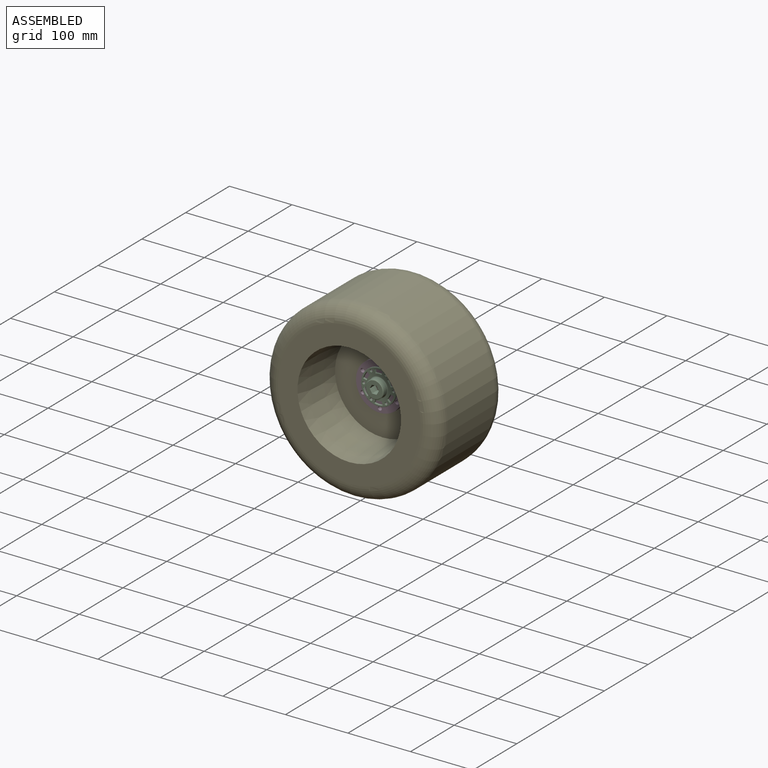
[diagram: assembled view]
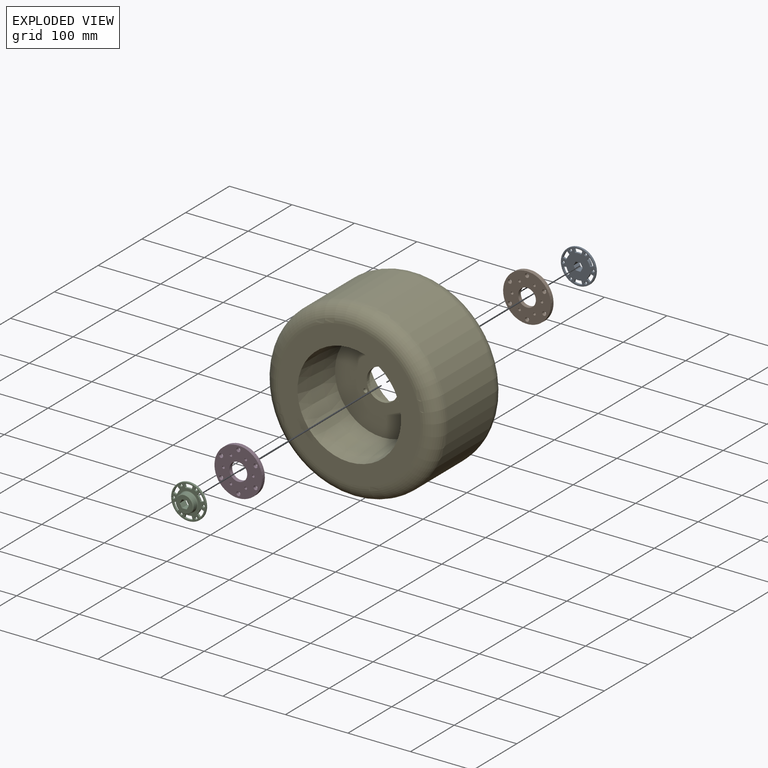
[diagram: exploded view]
GUIDED TOUR — MATED ASSEMBLY (Onshape document 413bc29f9eb9ac59f53fe216, AutoMate assembly 413bc29f9eb9ac59f53fe216_89440d528bdd338ad5810dab_16294e962d34230789b8fc0b_default)

This assembly has 5 components, labeled P0..P4 below (a component is one placed occurrence of a part; the same part can appear more than once), held together by 12 mates. A mate is a constraint between two components; its type names the relative motion it leaves free:
  CYLINDRICAL — leaves both rotation about and translation along the listed axis free,
  PLANAR — leaves sliding in the plane through the listed point (normal = the listed direction) and rotation about that normal free.
Axis/direction vectors are unit vectors and 'through' points are millimeter coordinates, both in the assembly's world frame.

MATES
  1. CYLINDRICAL "Cylindrical 8": P1 <-> P4, axis (0.000, 1.000, 0.000) through (-130.19, -36.20, -0.29) mm
  2. CYLINDRICAL "Cylindrical 1": P2 <-> P3, axis (0.000, -1.000, 0.000) through (-114.60, -55.25, 36.20) mm
  3. CYLINDRICAL "Cylindrical 3": P0 <-> P1, axis (0.000, -1.000, 0.000) through (-78.88, -31.44, 15.58) mm
  4. PLANAR "Planar 4": P1 <-> P4, direction (0.000, -1.000, 0.000) through (-90.79, -39.38, 36.20) mm
  5. CYLINDRICAL "Cylindrical 7": P1 <-> P4, axis (0.000, 1.000, 0.000) through (-75.20, -36.20, -0.29) mm
  6. CYLINDRICAL "Cylindrical 6": P3 <-> P4, axis (0.000, -1.000, 0.000) through (-75.20, -48.90, -0.29) mm
  7. PLANAR "Planar 2": P0 <-> P1, direction (0.000, -1.000, 0.000) through (-84.11, -33.03, 21.49) mm
  8. CYLINDRICAL "Cylindrical 2": P2 <-> P3, axis (0.000, 1.000, 0.000) through (-90.79, -55.25, 36.20) mm
  9. CYLINDRICAL "Cylindrical 4": P0 <-> P1, axis (0.000, 1.000, 0.000) through (-90.79, -29.85, -5.04) mm
  10. PLANAR "Planar 1": P2 <-> P3, direction (0.000, 1.000, 0.000) through (-102.70, -52.08, 15.58) mm
  11. PLANAR "Planar 3": P3 <-> P4, direction (0.000, 1.000, 0.000) through (-102.70, -45.73, 15.58) mm
  12. CYLINDRICAL "Cylindrical 5": P3 <-> P4, axis (0.000, -1.000, 0.000) through (-102.70, -48.90, 47.33) mm

ASSEMBLY ORDER
  1. P4 — the base component [order verified]
  2. P3 [order verified]
  3. P1 [order verified]
  4. P2 [order verified]
  5. P0 [order verified]
Order-tag legend:
  [order verified] — this step's position reverses a verified removal order: the component was checked to insert without passing through the ones already placed.

Of the 5 components, 1 carries the full construction recipe — the FeatureScript program that regenerates the part's solid from scratch; the rest are supplied as boundary geometry only.
Each toured component is shown spotlighted twice — in the assembled view, then in the exploded view, where a leader line traces a displaced component back to its assembled socket (saturated green if recipe-attached, orange if geometry-only; every other component desaturated gray) — followed by its recipe or geometry summary and the mates that hold it.
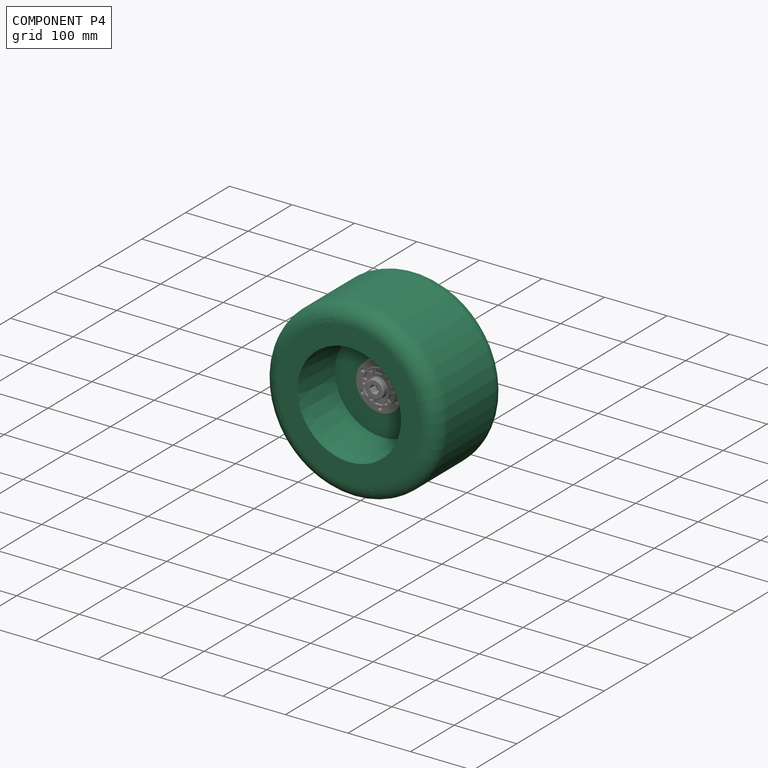
[diagram: component P4 — assembled]
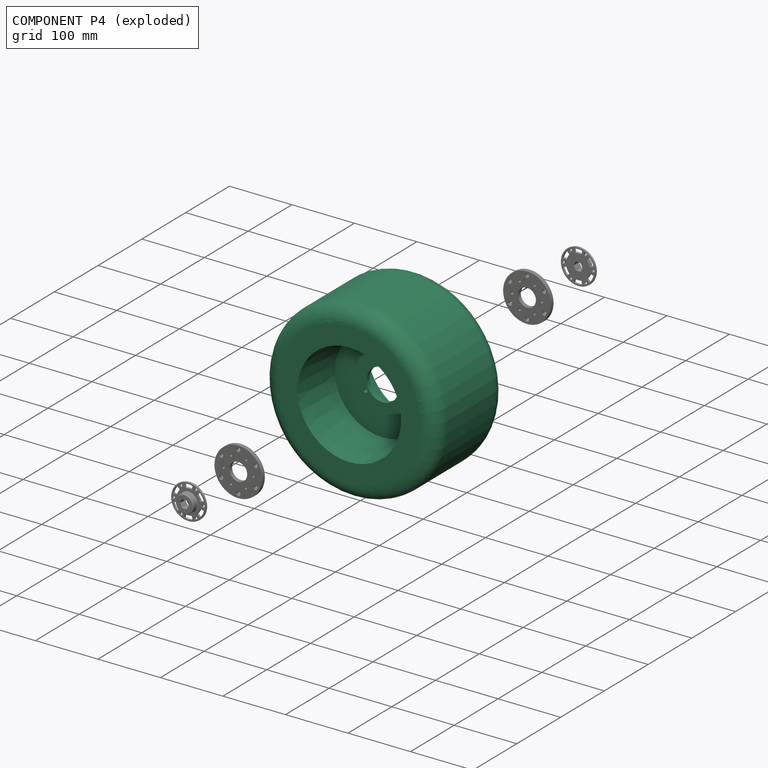
[diagram: component P4 — exploded]
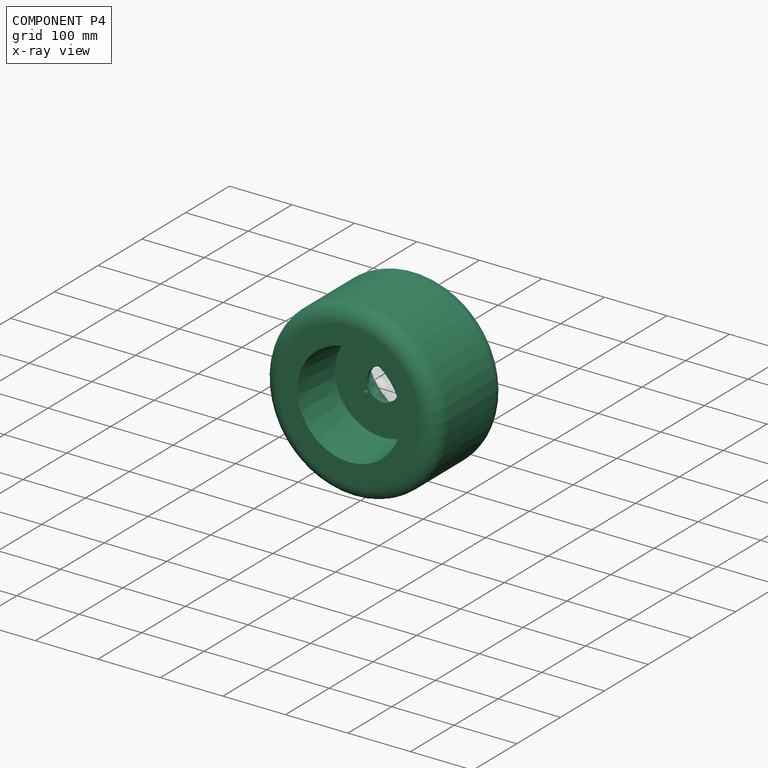
[diagram: component P4 — x-ray view]
COMPONENT P4 — recipe-attached (CADFS 00812460, mesh-verified: the recipe's output STEP matches this component's geometry to below the mesh-comparison resolution (tessellation chordal tolerance ~0.638 mm)).
Held by: CYLINDRICAL mate "Cylindrical 8" to P1; PLANAR mate "Planar 4" to P1; CYLINDRICAL mate "Cylindrical 7" to P1; CYLINDRICAL mate "Cylindrical 6" to P3; PLANAR mate "Planar 3" to P3; CYLINDRICAL mate "Cylindrical 5" to P3.
Construction recipe (FeatureScript — the CAD program that rebuilds this solid; sketch coordinates are in the units given by the * unit suffixes, e.g. mm):

FeatureScript 1511;
import(path : "onshape/std/geometry.fs", version : "1511.0");
import(path : "onshape/std/common.fs", version : "1511.0");
const mm = millimeter;
const VERTEX = EntityType.VERTEX;
const EDGE = EntityType.EDGE;
const FACE = EntityType.FACE;
const BODY = EntityType.BODY;
function v(x, y){return vector(x, y);}
function OD(order){return orderDisambiguation(order);}
function OSD(set){return originalSetDisambiguation(set);}
function TD(topology){return topologyDisambiguation(topology);}
function TDD(query){return trueDependencyDisambiguation(query);}
function sQuery(a, b, c) {return sketchEntityQuery(a, b, c);}

annotation { "Feature Type Name" : "Feature", "Feature Type Description" : "" }
export const myFeature = defineFeature(function(context is Context, id is Id, definition is map)
    precondition{}
    {
        {
            var Q0;
            Q0=qCreatedBy(makeId("Top.planeOp"),FACE);
            var sketch = newSketch(context, id + "F0", { "sketchPlane" : qUnion([Q0])});
            skLineSegment(sketch, "E0", {"start": v(0, 0) * mm, "end": v(0, 3.18) * mm});
            skLineSegment(sketch, "E1", {"start": v(0, 3.18) * mm, "end": v(76.2, 3.18) * mm});
            skLineSegment(sketch, "E2", {"start": v(76.2, 3.17) * mm, "end": v(82.87, 79.38) * mm});
            skLineSegment(sketch, "E3", {"start": v(82.87, 79.38) * mm, "end": v(139.7, 79.38) * mm});
            skLineSegment(sketch, "E4", {"start": v(139.7, 79.38) * mm, "end": v(139.7, 0) * mm});
            skLineSegment(sketch, "E5.MirrorCS", {"start": v(0, 0) * mm, "end": v(0, -3.18) * mm});
            skLineSegment(sketch, "E6.MirrorCS", {"start": v(82.87, -79.38) * mm, "end": v(139.7, -79.38) * mm});
            skLineSegment(sketch, "E7.MirrorCS", {"start": v(0, -3.18) * mm, "end": v(76.2, -3.18) * mm});
            skLineSegment(sketch, "E8.MirrorCS", {"start": v(76.2, -3.17) * mm, "end": v(82.87, -79.38) * mm});
            skLineSegment(sketch, "E9.MirrorCS", {"start": v(139.7, -79.38) * mm, "end": v(139.7, 0) * mm});
            skSolve(sketch);
        }
        {
            var Q0;
            Q0=makeQuery(id+"F0.imprint","IMPRINT",FACE,{"disambiguationData":[TD([[makeQuery(id+"F0.imprint","IMPRINT",EDGE,{"derivedFrom":sQuery(id+"F0.wireOp",EDGE,"E0")}),-1.0]])]});
            var Q1;
            Q1=sQuery(id+"F0.wireOp",EDGE,"E0");
            revolve(context, id + "F1", {"surfaceOperationType" : NewSurfaceOperationType.NEW, "entities" : qUnion([Q0]), "axis" : qUnion([Q1]), "revolveType" : RevolveType.FULL});
        }
        {
            var Q0;
            Q0=makeQuery(id+"F1.opRevolve","SWEPT_EDGE",EDGE,{"disambiguationData":[OSD([sQuery(id+"F0.wireOp",EDGE,"E6.MirrorCS"),sQuery(id+"F0.wireOp",EDGE,"E9.MirrorCS")])]});
            var Q1;
            Q1=makeQuery(id+"F1.opRevolve","SWEPT_EDGE",EDGE,{"disambiguationData":[OSD([sQuery(id+"F0.wireOp",EDGE,"E3"),sQuery(id+"F0.wireOp",EDGE,"E4")])]});
            fillet(context, id + "F2", {"entities" : qUnion([Q0, Q1]), "radius" : 25.4 * mm, "tangentPropagation" : true, "allowEdgeOverflow" : false});
        }
        {
            var Q0;
            Q0=makeQuery(id+"F1.opRevolve","SWEPT_FACE",FACE,{"disambiguationData":[OSD([sQuery(id+"F0.wireOp",EDGE,"E7.MirrorCS")])]});
            var sketch = newSketch(context, id + "F3", { "sketchPlane" : qUnion([Q0])});
            skCircle(sketch, "E10", {"center": v(0, 0) * mm, "radius": 25.4 * mm});
            skCircle(sketch, "E11", {"center": v(0, 31.75) * mm, "radius": 3.18 * mm});
            skCircle(sketch, "E12.1.0", {"center": v(-27.5, -15.87) * mm, "radius": 3.18 * mm});
            skCircle(sketch, "E12.2.0", {"center": v(27.5, -15.88) * mm, "radius": 3.18 * mm});
            skSolve(sketch);
        }
        {
            var Q0;
            Q0=makeQuery(id+"F3.imprint","IMPRINT",FACE,{"disambiguationData":[TD([[makeQuery(id+"F3.imprint","IMPRINT",EDGE,{"derivedFrom":sQuery(id+"F3.wireOp",EDGE,"E10")}),1.0]])]});
            var Q1;
            Q1=makeQuery(id+"F3.imprint","IMPRINT",FACE,{"disambiguationData":[TD([[makeQuery(id+"F3.imprint","IMPRINT",EDGE,{"derivedFrom":sQuery(id+"F3.wireOp",EDGE,"E11")}),1.0]])]});
            var Q2;
            Q2=makeQuery(id+"F3.imprint","IMPRINT",FACE,{"disambiguationData":[TD([[makeQuery(id+"F3.imprint","IMPRINT",EDGE,{"derivedFrom":sQuery(id+"F3.wireOp",EDGE,"E12.1.0")}),1.0]])]});
            var Q3;
            Q3=makeQuery(id+"F3.imprint","IMPRINT",FACE,{"disambiguationData":[TD([[makeQuery(id+"F3.imprint","IMPRINT",EDGE,{"derivedFrom":sQuery(id+"F3.wireOp",EDGE,"E12.2.0")}),1.0]])]});
            extrude(context, id + "F4", {"entities" : qUnion([Q0, Q1, Q2, Q3]), "operationType" : NewBodyOperationType.REMOVE, "endBound" : BoundingType.THROUGH_ALL, "oppositeDirection" : true, "depth" : 25.4 * mm, "offsetDistance" : 25.4 * mm});
        }
    });
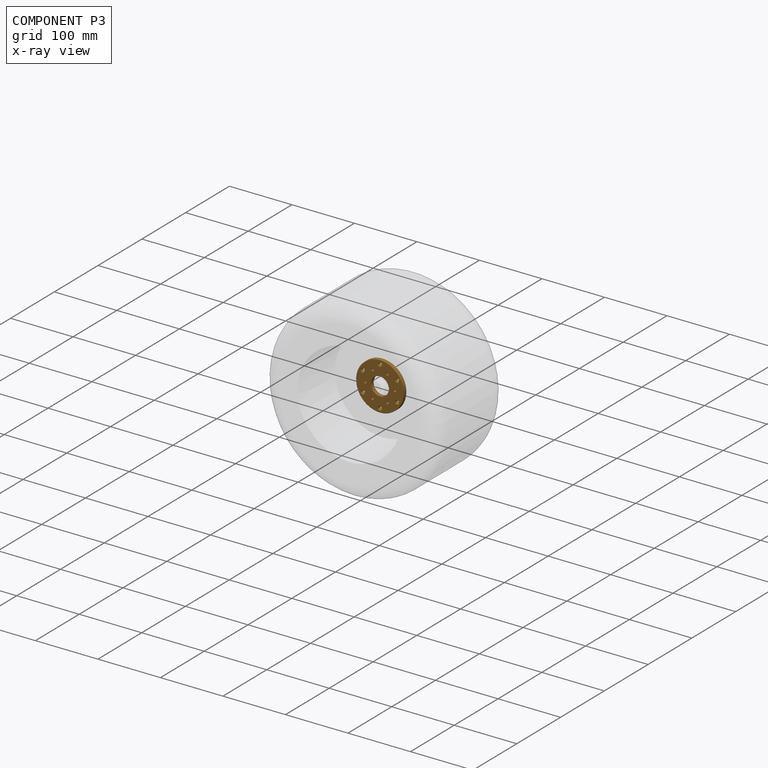
[diagram: component P3 — x-ray view]
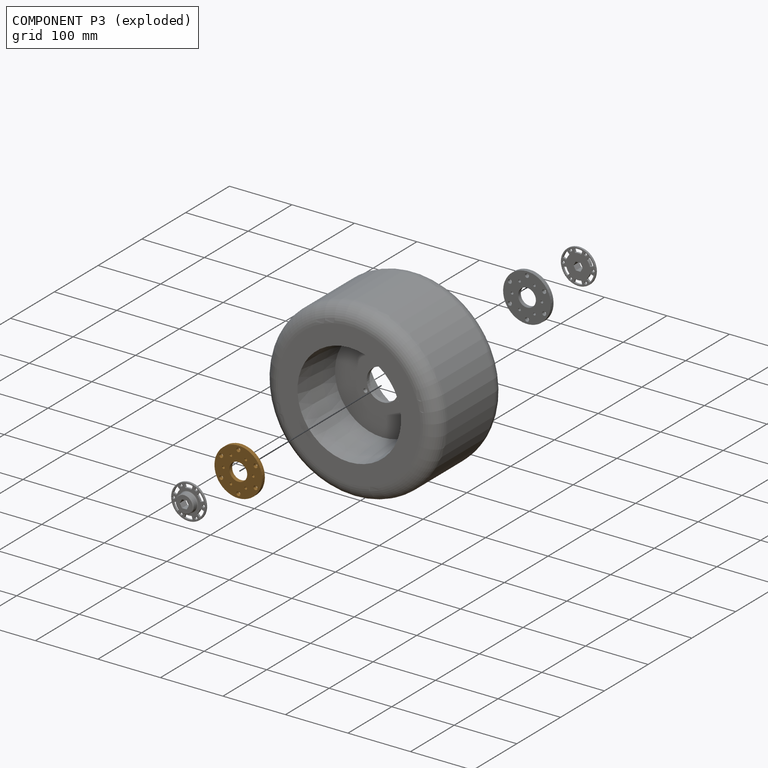
[diagram: component P3 — exploded]
COMPONENT P3 — geometry summary (no construction recipe available for this part):
  bounding box: 76.2 x 76.2 x 6.4 mm
  B-rep topology: 1 solid, 16 faces, 108 edges
  volume: 23185 mm^3 (63% of its bounding box)
  symmetry: 2-fold rotationally symmetric about the x axis; 6-fold rotationally symmetric about the y axis; 2-fold rotationally symmetric about the z axis; mirror-symmetric across its x mid-plane, y mid-plane, z mid-plane
Held by: CYLINDRICAL mate "Cylindrical 1" to P2; CYLINDRICAL mate "Cylindrical 6" to P4; CYLINDRICAL mate "Cylindrical 2" to P2; PLANAR mate "Planar 1" to P2; PLANAR mate "Planar 3" to P4; CYLINDRICAL mate "Cylindrical 5" to P4.
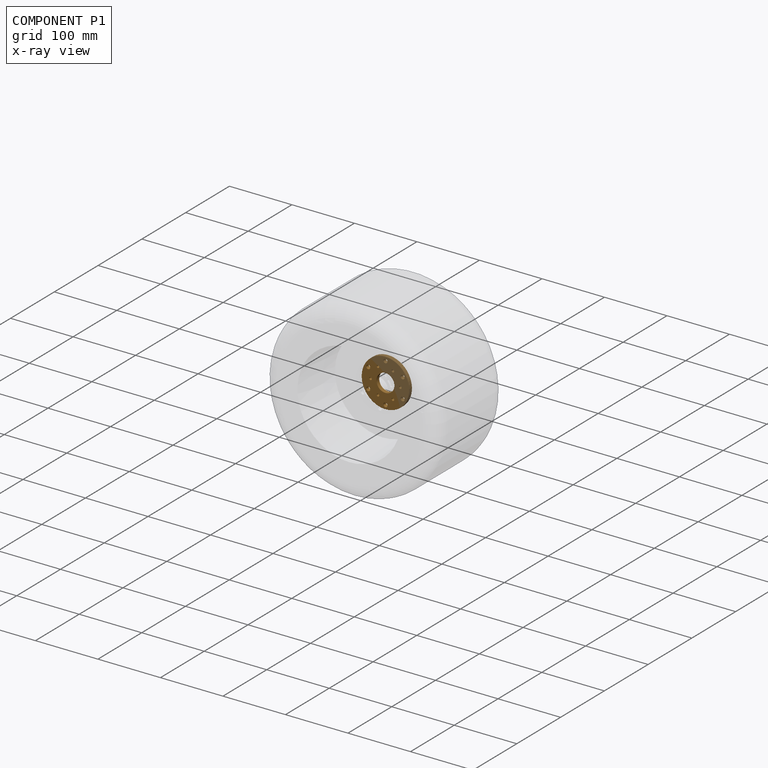
[diagram: component P1 — x-ray view]
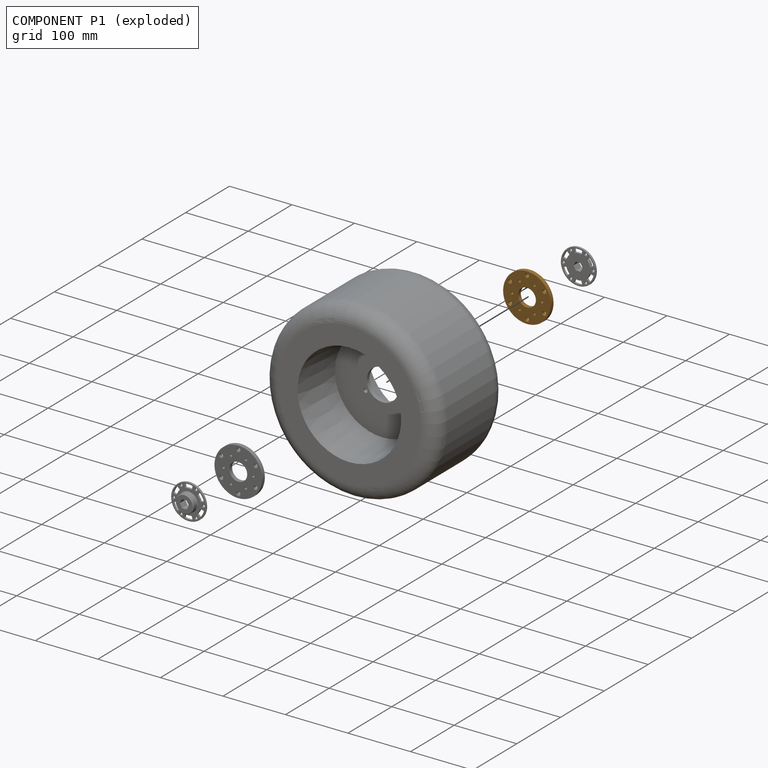
[diagram: component P1 — exploded]
COMPONENT P1 — geometry summary (no construction recipe available for this part):
  bounding box: 76.2 x 76.2 x 6.4 mm
  B-rep topology: 1 solid, 16 faces, 108 edges
  volume: 23185 mm^3 (63% of its bounding box)
  symmetry: 2-fold rotationally symmetric about the x axis; 6-fold rotationally symmetric about the y axis; 2-fold rotationally symmetric about the z axis; mirror-symmetric across its x mid-plane, y mid-plane, z mid-plane
Held by: CYLINDRICAL mate "Cylindrical 8" to P4; CYLINDRICAL mate "Cylindrical 3" to P0; PLANAR mate "Planar 4" to P4; CYLINDRICAL mate "Cylindrical 7" to P4; PLANAR mate "Planar 2" to P0; CYLINDRICAL mate "Cylindrical 4" to P0.
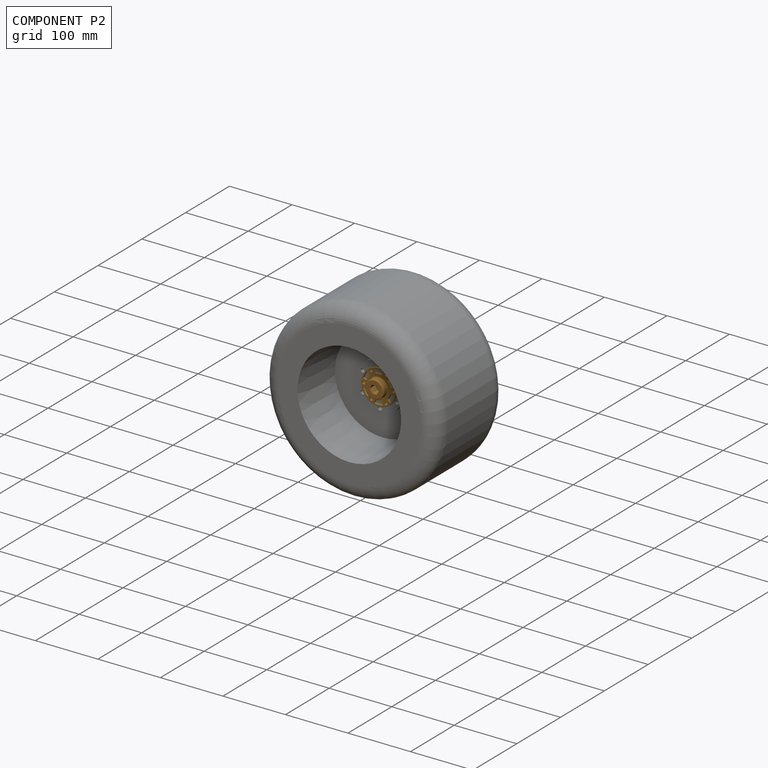
[diagram: component P2 — assembled]
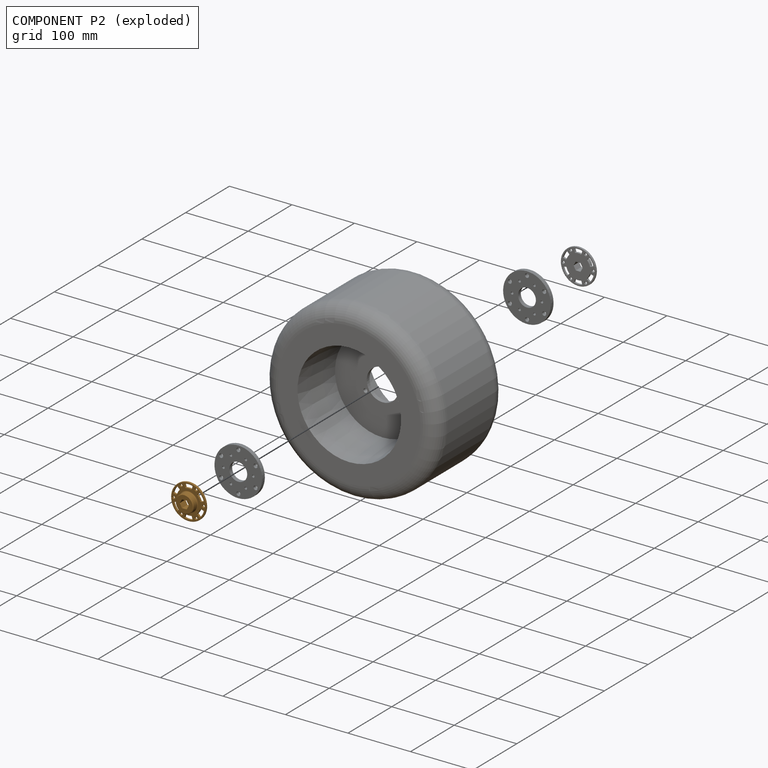
[diagram: component P2 — exploded]
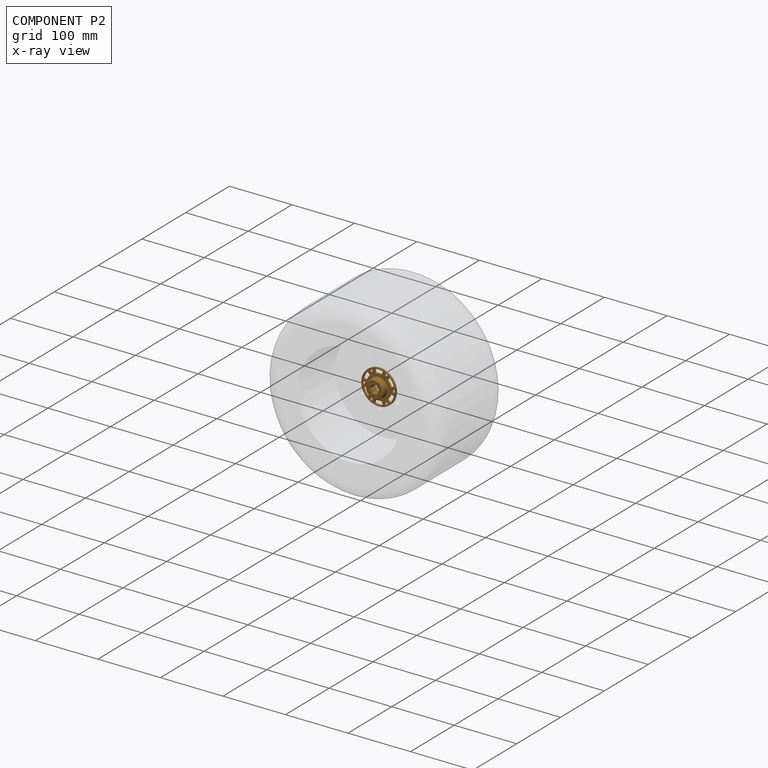
[diagram: component P2 — x-ray view]
COMPONENT P2 — geometry summary (no construction recipe available for this part):
  bounding box: 60.5 x 60.5 x 12.7 mm
  B-rep topology: 1 solid, 69 faces, 402 edges
  volume: 10474 mm^3 (23% of its bounding box)
  symmetry: 6-fold rotationally symmetric about the x axis; mirror-symmetric across its y mid-plane, z mid-plane
Held by: CYLINDRICAL mate "Cylindrical 1" to P3; CYLINDRICAL mate "Cylindrical 2" to P3; PLANAR mate "Planar 1" to P3.
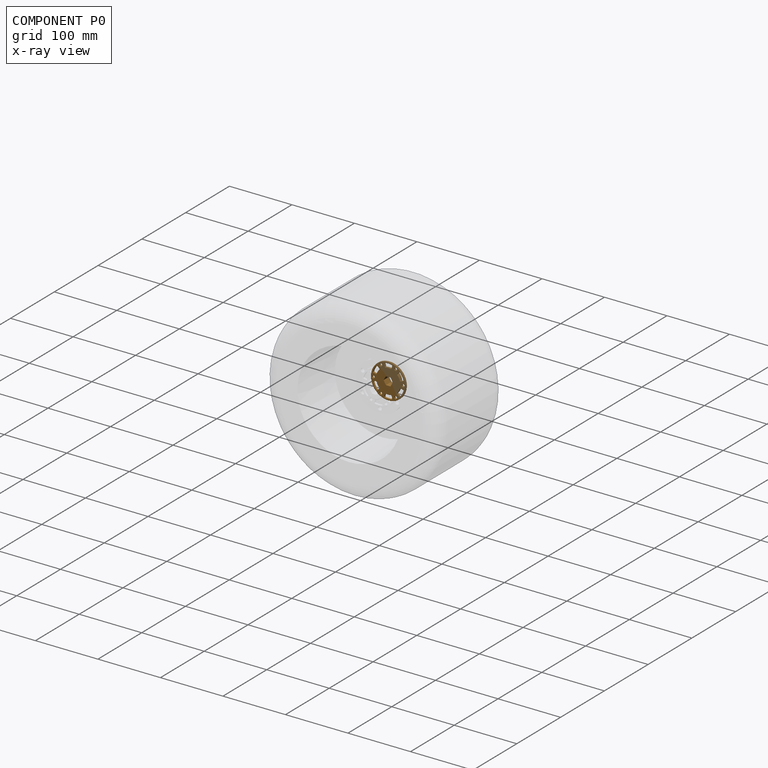
[diagram: component P0 — x-ray view]
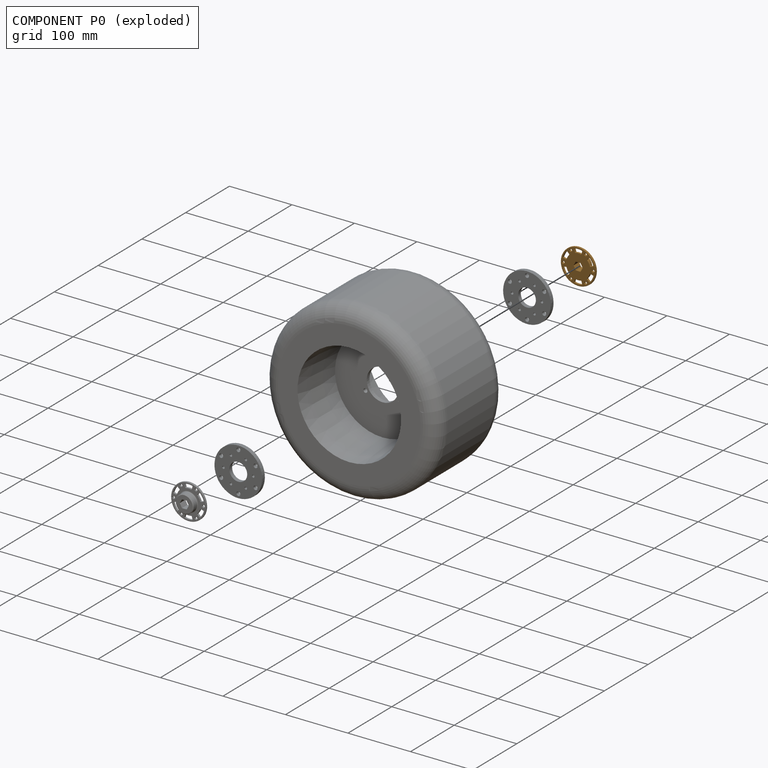
[diagram: component P0 — exploded]
COMPONENT P0 — geometry summary (no construction recipe available for this part):
  bounding box: 60.5 x 60.5 x 12.7 mm
  B-rep topology: 1 solid, 69 faces, 402 edges
  volume: 10474 mm^3 (23% of its bounding box)
  symmetry: 6-fold rotationally symmetric about the x axis; mirror-symmetric across its y mid-plane, z mid-plane
Held by: CYLINDRICAL mate "Cylindrical 3" to P1; PLANAR mate "Planar 2" to P1; CYLINDRICAL mate "Cylindrical 4" to P1.
PROVENANCE & LICENSES
Assembly (occurrences, transforms, mates, per-part STEP geometry): AutoMate dataset, Zenodo record 7776208, CC0.
Construction recipes: CADFS (HuggingFace VladPyatov/CADFS, CC-BY-4.0, layered over the ABC dataset), FeatureScript reconstruction programs keyed by ABC model id.
Join: ABC meta listings map ABC model id -> Onshape documentId; within a shared document, parts are matched by geometric signature (bounding-box dims + volume at 0.1% relative tolerance, exact B-rep face/solid counts).
Verification: 1 of this assembly's 5 components carries a recipe attachment, and every attachment is mesh-verified: the CADFS STEP and the AutoMate member STEP were compared as meshes in their shared local frame (symmetric sampled-point-to-mesh distance); worst across the 1 attachment: below the mesh-comparison resolution (tessellation chordal tolerance ~0.638 mm) on a 426 mm part.
Renders: orthographic iso camera (az 35 / el 25); the floor grid conveys scale (grid pitch printed in each image; no ruler). In the exploded view each component is displaced by its stored offset vector: the offsets alone carry the explosion direction (mate normal/axis signs are not orientation cues and do not encode it), and separation distances are assigned per mate-chain, not proportionally to assembly-order depth.
